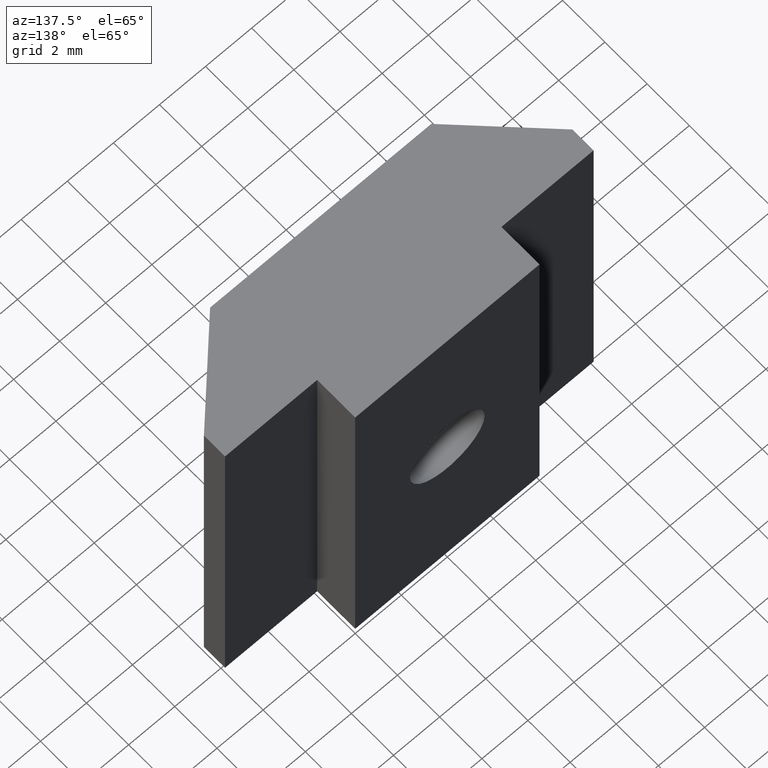
[diagram: clean part render]
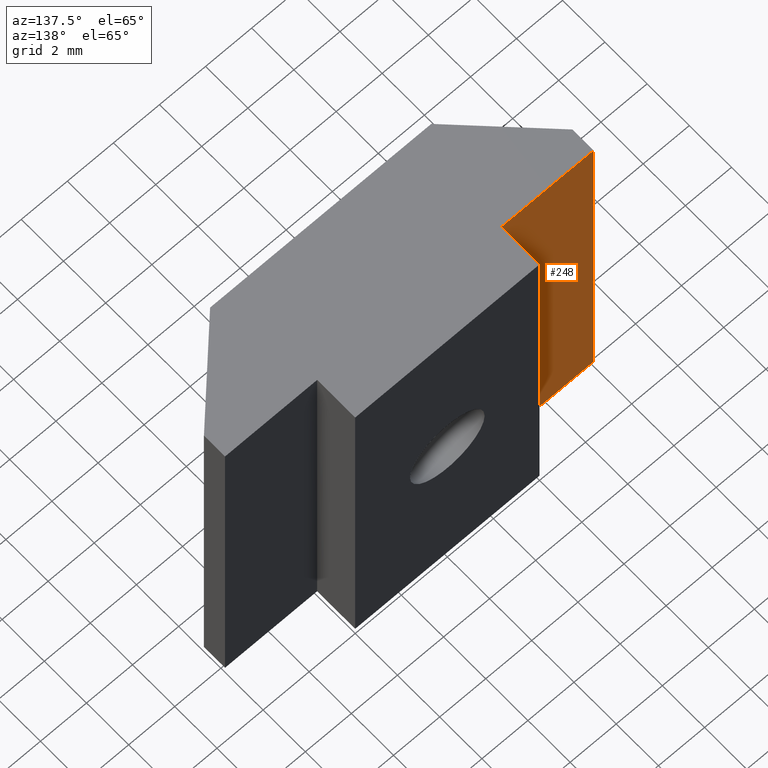
[diagram: same view with one face highlighted and labeled with its STEP entity id]
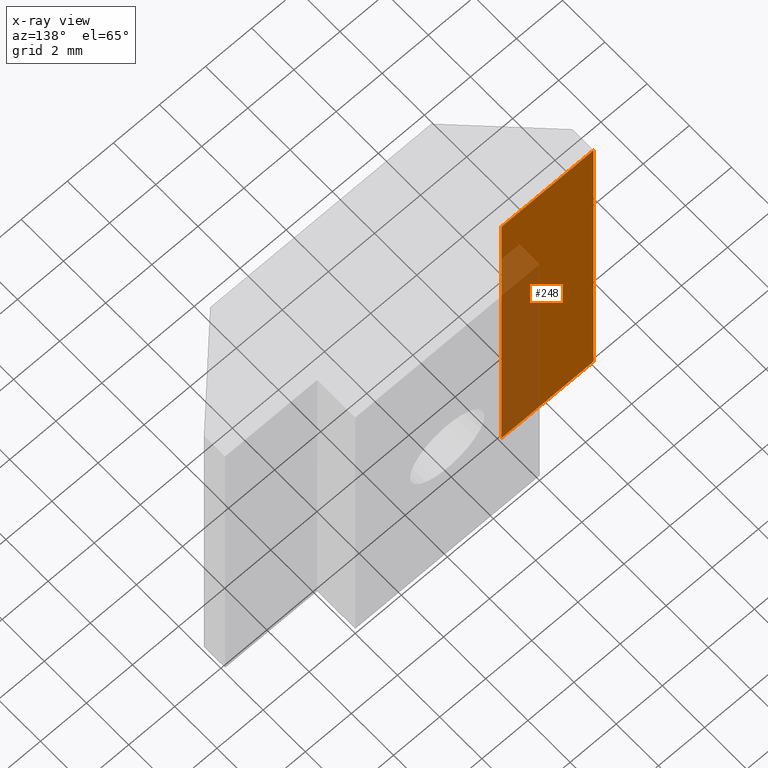
[diagram: x-ray of the same camera — body ghosted, the highlighted face saturated]
A machine part, auxiliary view. The second image highlights one B-rep face of the part: STEP entity #248.
The next image is the same camera in x-ray: the body ghosted, the highlighted face saturated — about 33% of this face is hidden behind the body in this view.
In plain terms, the highlighted planar face has unit normal (0, 1, 0).
Its self-contained STEP definition (entity closure, byte-faithful):
#36=LINE('',#382,#66);
#37=LINE('',#385,#67);
#38=LINE('',#387,#68);
#39=LINE('',#388,#69);
#66=VECTOR('',#313,16.);
#67=VECTOR('',#316,4.);
#68=VECTOR('',#317,4.);
#69=VECTOR('',#318,16.);
#82=PLANE('',#265);
#98=FACE_OUTER_BOUND('',#113,.T.);
#113=EDGE_LOOP('',(#206,#207,#208,#209));
#137=VERTEX_POINT('',#378);
#138=VERTEX_POINT('',#380);
#139=VERTEX_POINT('',#384);
#140=VERTEX_POINT('',#386);
#166=EDGE_CURVE('',#137,#138,#36,.T.);
#167=EDGE_CURVE('',#137,#139,#37,.T.);
#168=EDGE_CURVE('',#140,#138,#38,.T.);
#169=EDGE_CURVE('',#139,#140,#39,.T.);
#206=ORIENTED_EDGE('',*,*,#167,.F.);
#207=ORIENTED_EDGE('',*,*,#166,.T.);
#208=ORIENTED_EDGE('',*,*,#168,.F.);
#209=ORIENTED_EDGE('',*,*,#169,.F.);
#248=ADVANCED_FACE('',(#98),#82,.T.);
#265=AXIS2_PLACEMENT_3D('',#383,#314,#315);
#313=DIRECTION('',(0.,0.,1.));
#314=DIRECTION('center_axis',(0.,1.,0.));
#315=DIRECTION('ref_axis',(-1.,0.,0.));
#316=DIRECTION('',(1.,0.,0.));
#317=DIRECTION('',(-1.,0.,0.));
#318=DIRECTION('',(0.,0.,1.));
#378=CARTESIAN_POINT('',(-8.,4.2,0.));
#380=CARTESIAN_POINT('',(-8.,4.2,16.));
#382=CARTESIAN_POINT('',(-8.,4.2,0.));
#383=CARTESIAN_POINT('Origin',(-4.,4.2,0.));
#384=CARTESIAN_POINT('',(-4.,4.2,0.));
#385=CARTESIAN_POINT('',(-8.,4.2,0.));
#386=CARTESIAN_POINT('',(-4.,4.2,16.));
#387=CARTESIAN_POINT('',(-8.,4.2,16.));
#388=CARTESIAN_POINT('',(-4.,4.2,0.));